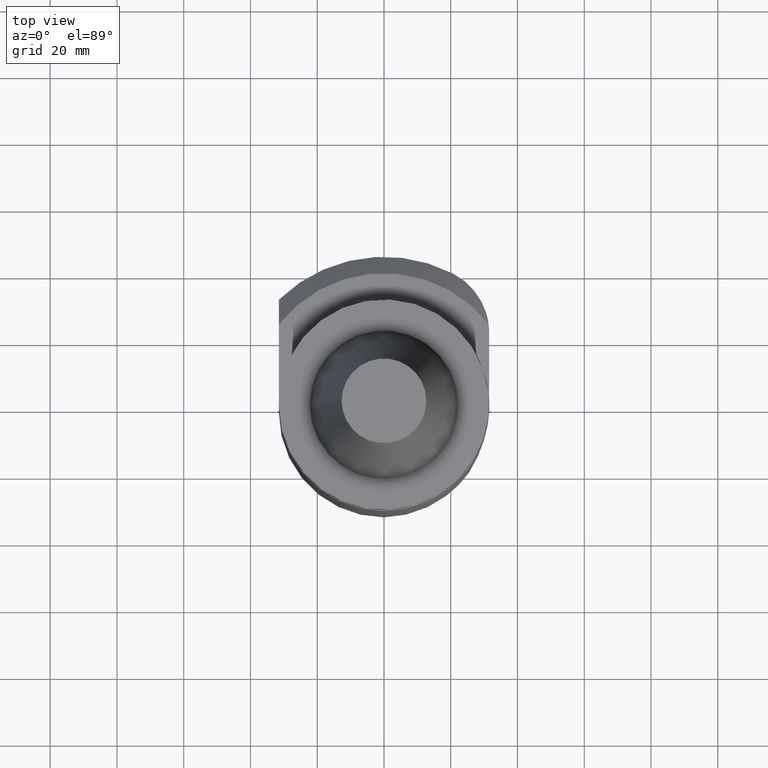
[diagram: clean part render]
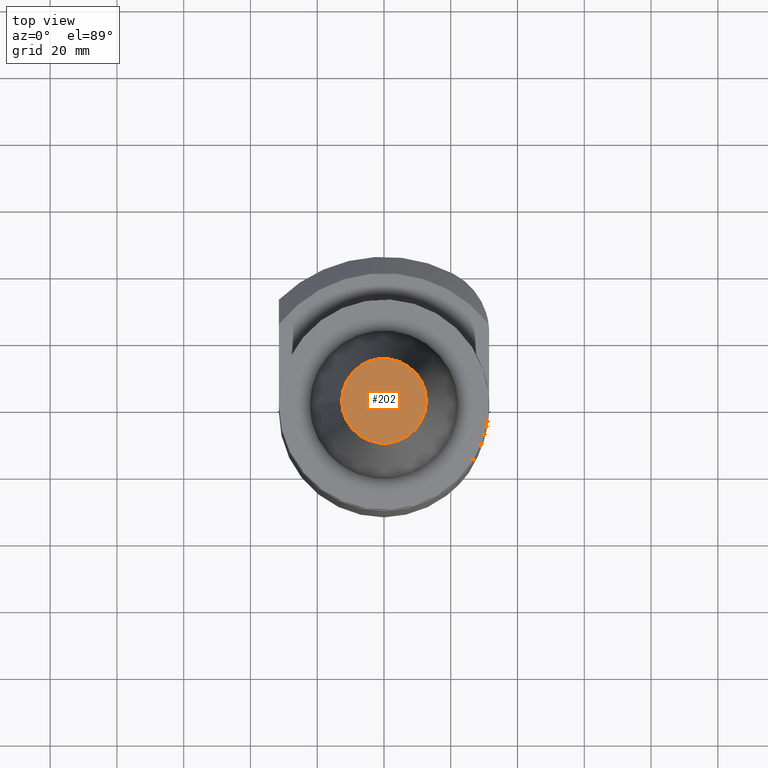
[diagram: same view with one face highlighted and labeled with its STEP entity id]
A machine part, top view. The second image highlights one B-rep face of the part: STEP entity #202.
In plain terms, the highlighted planar face has unit normal (-0, -0, -1).
Its self-contained STEP definition (entity closure, byte-faithful):
#156=EDGE_CURVE('240[2]',#348,#348,#349,.T.);
#202=ADVANCED_FACE('240[2]',(#413),#414,.F.);
#348=VERTEX_POINT('',#602);
#349=CIRCLE('',#603,12.6875000044926);
#413=FACE_OUTER_BOUND('',#698,.T.);
#414=PLANE('',#699);
#602=CARTESIAN_POINT('',(-12.6875000044926,1.67393909275927E-015,65.4));
#603=AXIS2_PLACEMENT_3D('',#872,#873,#874);
#698=EDGE_LOOP('',(#949));
#699=AXIS2_PLACEMENT_3D('',#950,#951,#952);
#872=CARTESIAN_POINT('',(8.00919006642369E-015,4.00459503321185E-015,65.4));
#873=DIRECTION('',(0.0,0.0,1.0));
#874=DIRECTION('',(-1.0,0.0,0.0));
#949=ORIENTED_EDGE('',*,*,#156,.T.);
#950=CARTESIAN_POINT('',(-6.34375000224627,2.83926706298556E-015,65.4));
#951=DIRECTION('',(-0.0,-0.0,-1.0));
#952=DIRECTION('',(0.0,-1.0,0.0));